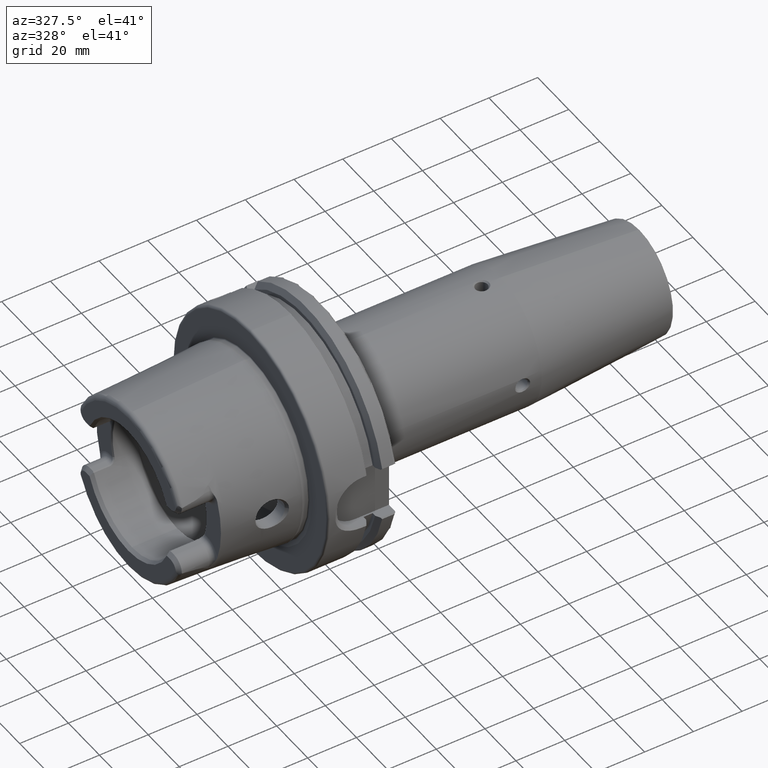
[diagram: clean part render]
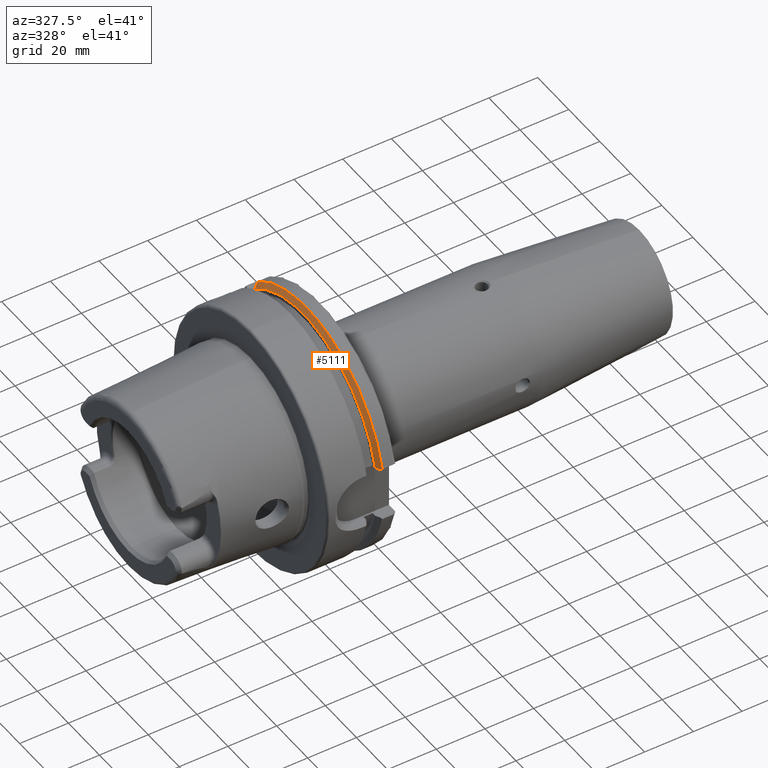
[diagram: same view with one face highlighted and labeled with its STEP entity id]
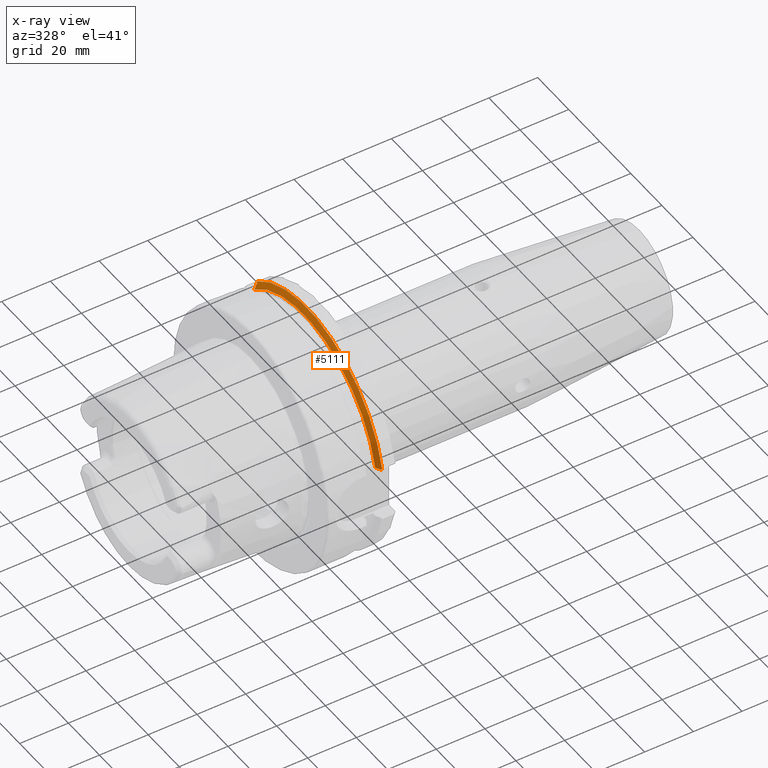
[diagram: x-ray of the same camera — body ghosted, the highlighted face saturated]
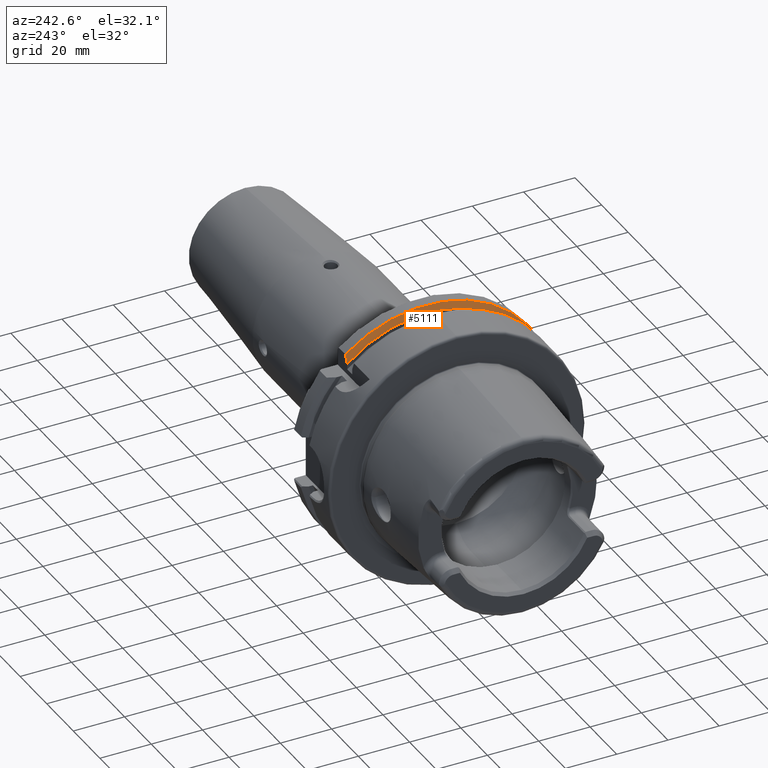
[diagram: same view with one face highlighted and labeled with its STEP entity id]
A machine part, auxiliary view. The second image highlights one B-rep face of the part: STEP entity #5111.
The next image is the same camera in x-ray: the body ghosted, the highlighted face saturated — about 0% of this face is hidden behind the body in this view.
A second angle (auxiliary view) of the same face is appended — the face is thin or edge-on in the first view.
In plain terms, the highlighted conical surface has half-angle 60 deg.
Its self-contained STEP definition (entity closure, byte-faithful):
#1773=CARTESIAN_POINT('',(2.324759526419E1,-4.866725793949E1,1.146725793949E1));
#1774=CARTESIAN_POINT('',(2.319320606615E1,-4.858892950114E1,1.138892950114E1));
#1775=CARTESIAN_POINT('',(2.308485924693E1,-4.843272472970E1,1.123272472970E1));
#1776=CARTESIAN_POINT('',(2.297737549999E1,-4.827742419714E1,1.107742419714E1));
#1777=CARTESIAN_POINT('',(2.292384936729E1,-4.82E1,1.1E1));
#1779=CARTESIAN_POINT('',(2.1875E1,-4.633477721644E1,1.1E1));
#1780=CARTESIAN_POINT('',(2.199006978269E1,-4.653962341094E1,1.1E1));
#1781=CARTESIAN_POINT('',(2.222118952233E1,-4.695091574593E1,1.1E1));
#1782=CARTESIAN_POINT('',(2.257080301992E1,-4.757264841853E1,1.1E1));
#1783=CARTESIAN_POINT('',(2.280584093372E1,-4.799034821794E1,1.1E1));
#1784=CARTESIAN_POINT('',(2.292384936729E1,-4.82E1,1.1E1));
#1786=CARTESIAN_POINT('',(2.1875E1,0.E0,0.E0));
#1787=DIRECTION('',(-1.E0,0.E0,0.E0));
#1788=DIRECTION('',(0.E0,-9.729578356533E-1,2.309827916554E-1));
#1789=AXIS2_PLACEMENT_3D('',#1786,#1787,#1788);
#1791=CARTESIAN_POINT('',(2.1875E1,3.15E1,3.571640491003E1));
#1792=CARTESIAN_POINT('',(2.202021939619E1,3.15E1,3.605177982488E1));
#1793=CARTESIAN_POINT('',(2.231549740227E1,3.15E1,3.672957046665E1));
#1794=CARTESIAN_POINT('',(2.277287716612E1,3.15E1,3.776708560866E1));
#1795=CARTESIAN_POINT('',(2.308771105103E1,3.15E1,3.847316467063E1));
#1796=CARTESIAN_POINT('',(2.324759526419E1,3.15E1,3.882975663071E1));
#1798=CARTESIAN_POINT('',(2.324759526419E1,0.E0,0.E0));
#1799=DIRECTION('',(1.E0,0.E0,0.E0));
#1800=DIRECTION('',(0.E0,6.3E-1,7.765951326142E-1));
#1801=AXIS2_PLACEMENT_3D('',#1798,#1799,#1800);
#2872=CARTESIAN_POINT('',(2.1875E1,-4.633477721644E1,1.1E1));
#2873=VERTEX_POINT('',#2872);
#2902=CARTESIAN_POINT('',(2.1875E1,3.15E1,3.571640491003E1));
#2903=VERTEX_POINT('',#2902);
#2906=VERTEX_POINT('',#1796);
#3118=VERTEX_POINT('',#1773);
#3119=VERTEX_POINT('',#1777);
#5096=CARTESIAN_POINT('',(2.256129763210E1,0.E0,0.E0));
#5097=DIRECTION('',(1.E0,0.E0,0.E0));
#5098=DIRECTION('',(0.E0,0.E0,1.E0));
#5099=AXIS2_PLACEMENT_3D('',#5096,#5097,#5098);
#5100=CONICAL_SURFACE('',#5099,4.881129763210E1,6.E1);
#5101=ORIENTED_EDGE('',*,*,#4851,.T.);
#5103=ORIENTED_EDGE('',*,*,#5102,.F.);
#5105=ORIENTED_EDGE('',*,*,#5104,.T.);
#5107=ORIENTED_EDGE('',*,*,#5106,.T.);
#5108=ORIENTED_EDGE('',*,*,#4715,.T.);
#5109=EDGE_LOOP('',(#5101,#5103,#5105,#5107,#5108));
#5110=FACE_OUTER_BOUND('',#5109,.F.);
#5111=ADVANCED_FACE('',(#5110),#5100,.T.);
#1778=B_SPLINE_CURVE_WITH_KNOTS('',3,(#1773,#1774,#1775,#1776,#1777),
.UNSPECIFIED.,.F.,.F.,(4,1,4),(0.E0,5.E-1,1.E0),.UNSPECIFIED.);
#1785=B_SPLINE_CURVE_WITH_KNOTS('',3,(#1779,#1780,#1781,#1782,#1783,#1784),
.UNSPECIFIED.,.F.,.F.,(4,1,1,4),(0.E0,3.333333333333E-1,6.666666666667E-1,1.E0),
.UNSPECIFIED.);
#1790=CIRCLE('',#1789,4.762259526419E1);
#1797=B_SPLINE_CURVE_WITH_KNOTS('',3,(#1791,#1792,#1793,#1794,#1795,#1796),
.UNSPECIFIED.,.F.,.F.,(4,1,1,4),(0.E0,3.333333333333E-1,6.666666666667E-1,1.E0),
.UNSPECIFIED.);
#1802=CIRCLE('',#1801,5.E1);
#4715=EDGE_CURVE('',#2906,#3118,#1802,.T.);
#4851=EDGE_CURVE('',#3118,#3119,#1778,.T.);
#5102=EDGE_CURVE('',#2873,#3119,#1785,.T.);
#5104=EDGE_CURVE('',#2873,#2903,#1790,.T.);
#5106=EDGE_CURVE('',#2903,#2906,#1797,.T.);